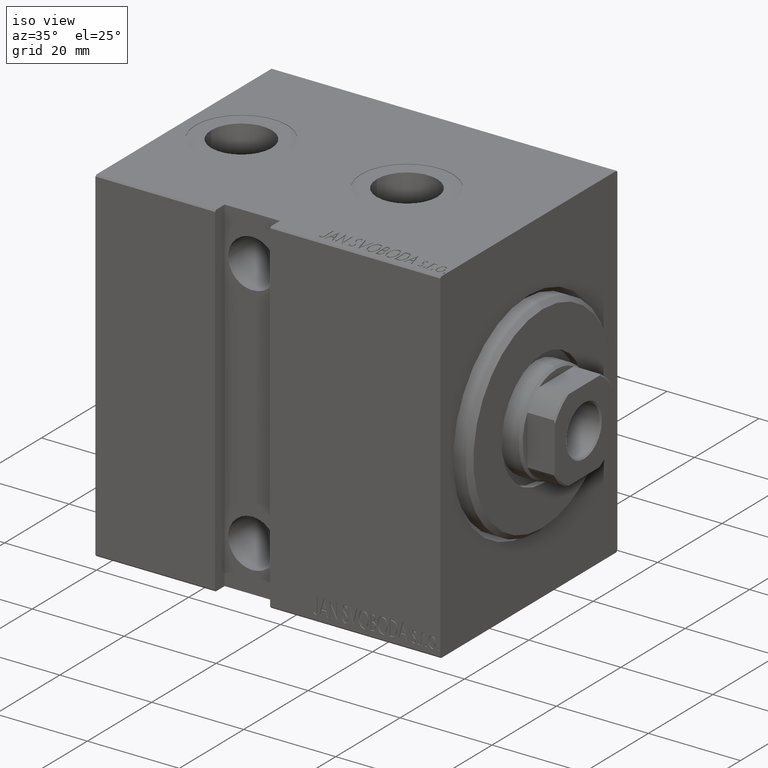
[diagram: clean part render]
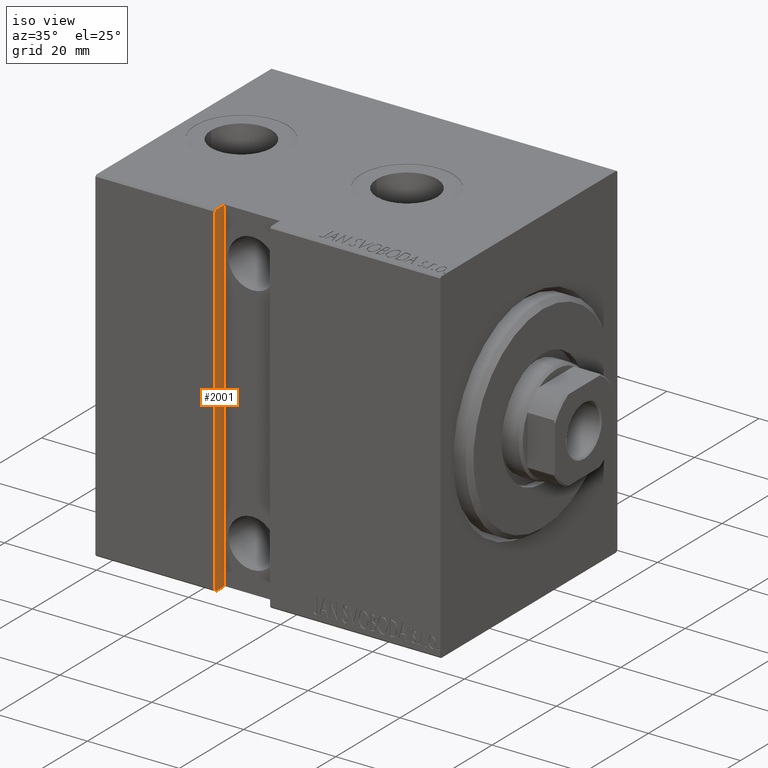
[diagram: same view with one face highlighted and labeled with its STEP entity id]
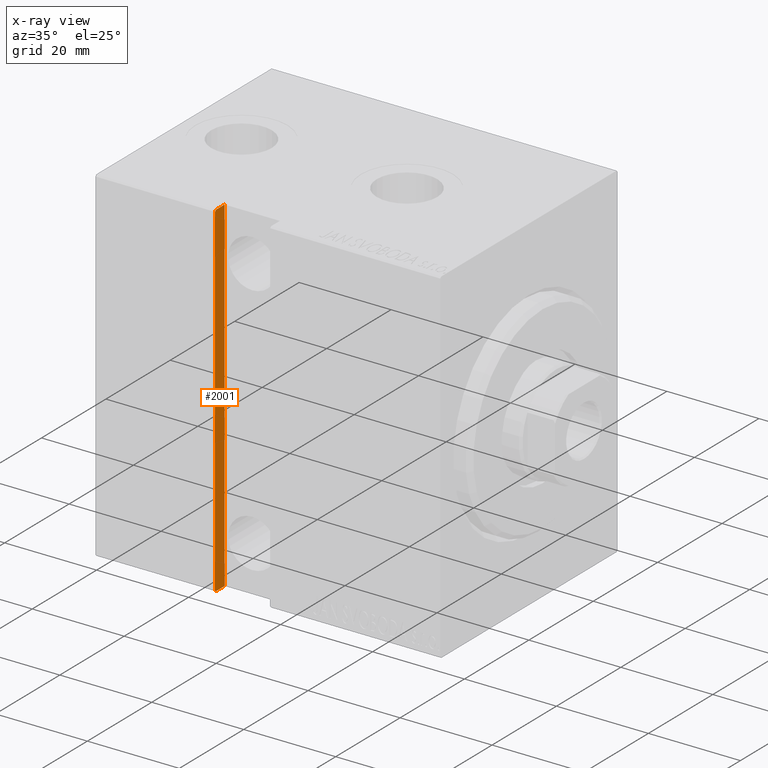
[diagram: x-ray of the same camera — body ghosted, the highlighted face saturated]
A machine part, iso view. The second image highlights one B-rep face of the part: STEP entity #2001.
The next image is the same camera in x-ray: the body ghosted, the highlighted face saturated — about 0% of this face is hidden behind the body in this view.
In plain terms, the highlighted planar face has unit normal (-1, 0, -0).
Its self-contained STEP definition (entity closure, byte-faithful):
#2001 = ADVANCED_FACE ( 'NONE', ( #35865 ), #35651, .F. ) ;
#3706 = VERTEX_POINT ( 'NONE', #9944 ) ;
#3747 = CARTESIAN_POINT ( 'NONE',  ( 49.00000000000000000, 27.20000000000000284, 37.50000000000000711 ) ) ;
#3980 = CARTESIAN_POINT ( 'NONE',  ( 48.99999999999999289, 24.50000000000000000, -37.50000000000000711 ) ) ;
#4239 = LINE ( 'NONE', #21156, #35302 ) ;
#4643 = LINE ( 'NONE', #3980, #29897 ) ;
#5386 = DIRECTION ( 'NONE',  ( 1.000000000000000000, 0.000000000000000000, -9.251858538542978977E-17 ) ) ;
#5762 = CARTESIAN_POINT ( 'NONE',  ( 49.00000000000000000, 27.20000000000000284, 37.49999999999993605 ) ) ;
#7269 = LINE ( 'NONE', #20842, #34447 ) ;
#7765 = VERTEX_POINT ( 'NONE', #23001 ) ;
#7935 = DIRECTION ( 'NONE',  ( -9.251858538542978977E-17, -0.000000000000000000, -1.000000000000000000 ) ) ;
#7945 = VERTEX_POINT ( 'NONE', #5762 ) ;
#9474 = VECTOR ( 'NONE', #17330, 1000.000000000000114 ) ;
#9681 = ORIENTED_EDGE ( 'NONE', *, *, #16900, .F. ) ;
#9944 = CARTESIAN_POINT ( 'NONE',  ( 49.00000000000000000, 24.50000000000000355, -37.50000000000000711 ) ) ;
#10285 = VECTOR ( 'NONE', #7935, 1000.000000000000000 ) ;
#10316 = EDGE_CURVE ( 'NONE', #7945, #7765, #34227, .T. ) ;
#12668 = LINE ( 'NONE', #39559, #33358 ) ;
#12899 = VERTEX_POINT ( 'NONE', #40992 ) ;
#13243 = CARTESIAN_POINT ( 'NONE',  ( 49.00000000000000000, 24.50000000000000000, 37.49999999999993605 ) ) ;
#14607 = CARTESIAN_POINT ( 'NONE',  ( 48.99999999999999289, 27.50000000000000000, -37.50000000000000711 ) ) ;
#16900 = EDGE_CURVE ( 'NONE', #29154, #3706, #7269, .T. ) ;
#16902 = EDGE_CURVE ( 'NONE', #7765, #29443, #31943, .T. ) ;
#17330 = DIRECTION ( 'NONE',  ( -6.542051911182402486E-17, 0.7071067811865474617, -0.7071067811865474617 ) ) ;
#18664 = ORIENTED_EDGE ( 'NONE', *, *, #10316, .T. ) ;
#20842 = CARTESIAN_POINT ( 'NONE',  ( 48.99999999999999289, 24.50000000000000000, -37.50000000000000711 ) ) ;
#21156 = CARTESIAN_POINT ( 'NONE',  ( 48.99999999999999289, 27.50000000000000355, -37.19999999999999574 ) ) ;
#22308 = CARTESIAN_POINT ( 'NONE',  ( 48.99999999999999289, 24.50000000000000000, -37.50000000000000711 ) ) ;
#23001 = CARTESIAN_POINT ( 'NONE',  ( 49.00000000000000000, 27.50000000000000000, 37.20000000000000995 ) ) ;
#25146 = DIRECTION ( 'NONE',  ( -6.542051911182440696E-17, -0.7071067811865434649, -0.7071067811865516806 ) ) ;
#25679 = AXIS2_PLACEMENT_3D ( 'NONE', #22308, #5386, #28533 ) ;
#26680 = EDGE_CURVE ( 'NONE', #29443, #12899, #4239, .T. ) ;
#27728 = DIRECTION ( 'NONE',  ( -9.251858538542978977E-17, -0.000000000000000000, -1.000000000000000000 ) ) ;
#28533 = DIRECTION ( 'NONE',  ( -9.251858538542978977E-17, 0.000000000000000000, -1.000000000000000000 ) ) ;
#29154 = VERTEX_POINT ( 'NONE', #13243 ) ;
#29443 = VERTEX_POINT ( 'NONE', #34307 ) ;
#29779 = ORIENTED_EDGE ( 'NONE', *, *, #35324, .T. ) ;
#29897 = VECTOR ( 'NONE', #31779, 1000.000000000000000 ) ;
#31779 = DIRECTION ( 'NONE',  ( -0.000000000000000000, 1.000000000000000000, -0.000000000000000000 ) ) ;
#31943 = LINE ( 'NONE', #14607, #10285 ) ;
#32318 = ORIENTED_EDGE ( 'NONE', *, *, #38545, .F. ) ;
#33356 = ORIENTED_EDGE ( 'NONE', *, *, #16902, .T. ) ;
#33358 = VECTOR ( 'NONE', #35574, 1000.000000000000000 ) ;
#34227 = LINE ( 'NONE', #3747, #9474 ) ;
#34307 = CARTESIAN_POINT ( 'NONE',  ( 48.99999999999999289, 27.50000000000000000, -37.19999999999999574 ) ) ;
#34447 = VECTOR ( 'NONE', #27728, 1000.000000000000000 ) ;
#35302 = VECTOR ( 'NONE', #25146, 1000.000000000000000 ) ;
#35324 = EDGE_CURVE ( 'NONE', #29154, #7945, #12668, .T. ) ;
#35574 = DIRECTION ( 'NONE',  ( -0.000000000000000000, 1.000000000000000000, -0.000000000000000000 ) ) ;
#35651 = PLANE ( 'NONE',  #25679 ) ;
#35865 = FACE_OUTER_BOUND ( 'NONE', #36170, .T. ) ;
#36066 = ORIENTED_EDGE ( 'NONE', *, *, #26680, .T. ) ;
#36170 = EDGE_LOOP ( 'NONE', ( #33356, #36066, #32318, #9681, #29779, #18664 ) ) ;
#38545 = EDGE_CURVE ( 'NONE', #3706, #12899, #4643, .T. ) ;
#39559 = CARTESIAN_POINT ( 'NONE',  ( 49.00000000000000000, 24.50000000000000000, 37.49999999999993605 ) ) ;
#40992 = CARTESIAN_POINT ( 'NONE',  ( 48.99999999999999289, 27.19999999999999929, -37.50000000000000711 ) ) ;